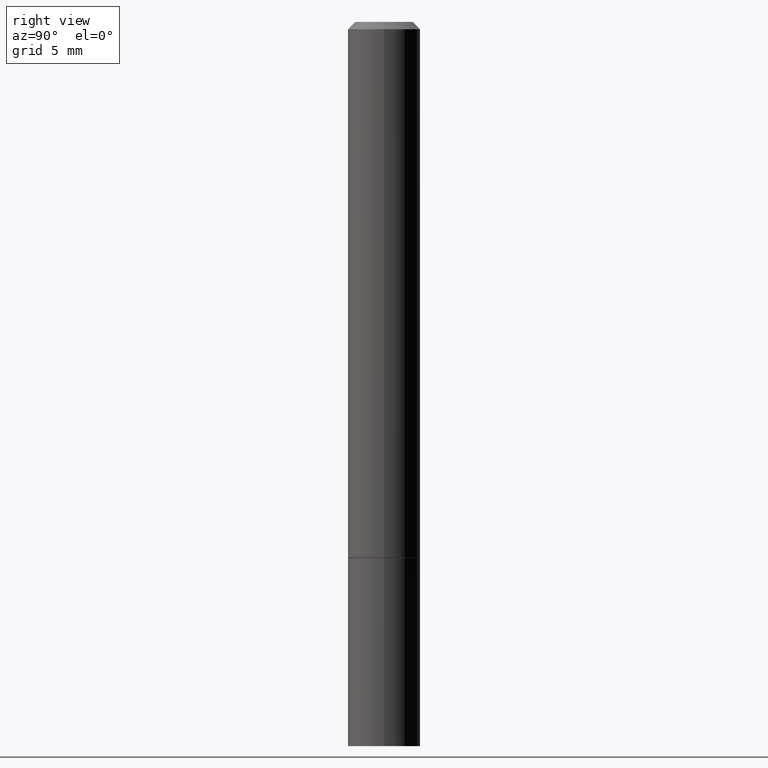
[diagram: clean part render]
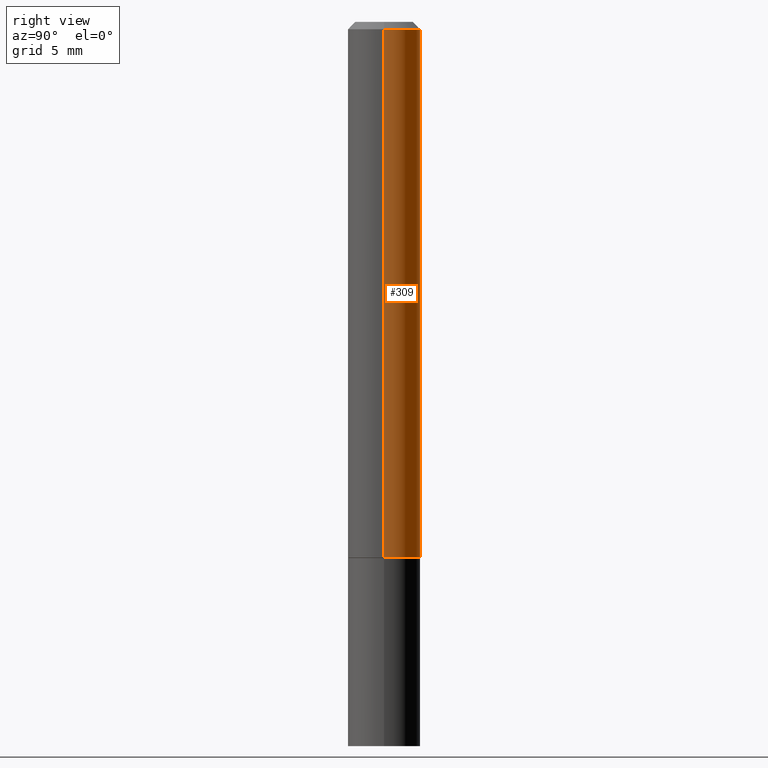
[diagram: same view with one face highlighted and labeled with its STEP entity id]
A machine part, right view. The second image highlights one B-rep face of the part: STEP entity #309.
In plain terms, the highlighted cylindrical surface (edge-blend (fillet) strip) has radius 2.5006 mm, axis along (-0, 0, 1).
Its self-contained STEP definition (entity closure, byte-faithful):
#4 = CIRCLE ( 'NONE', #200, 0.09844999999999980156 ) ;
#7 = AXIS2_PLACEMENT_3D ( 'NONE', #107, #249, #110 ) ;
#24 = DIRECTION ( 'NONE',  ( 1.000000000000000000, -6.982962677686265133E-15, 0.000000000000000000 ) ) ;
#35 = CARTESIAN_POINT ( 'NONE',  ( 3.559868941163703312E-29, -5.082549384953967438E-15, -1.455699999999999994 ) ) ;
#41 = EDGE_LOOP ( 'NONE', ( #76, #219, #121, #86 ) ) ;
#45 = FACE_OUTER_BOUND ( 'NONE', #41, .T. ) ;
#46 = DIRECTION ( 'NONE',  ( -2.445468806185136597E-29, 3.491481338843145583E-15, 1.000000000000000000 ) ) ;
#56 = CARTESIAN_POINT ( 'NONE',  ( 4.890937612370279289E-31, -6.982962677686299005E-17, -0.02000000000000002470 ) ) ;
#76 = ORIENTED_EDGE ( 'NONE', *, *, #78, .T. ) ;
#78 = EDGE_CURVE ( 'NONE', #106, #177, #354, .T. ) ;
#86 = ORIENTED_EDGE ( 'NONE', *, *, #346, .F. ) ;
#93 = EDGE_CURVE ( 'NONE', #119, #184, #4, .T. ) ;
#100 = DIRECTION ( 'NONE',  ( 1.000000000000000000, -6.982962677686266711E-15, 0.000000000000000000 ) ) ;
#105 = VECTOR ( 'NONE', #146, 39.37007874015748143 ) ;
#106 = VERTEX_POINT ( 'NONE', #186 ) ;
#107 = CARTESIAN_POINT ( 'NONE',  ( 0.000000000000000000, 0.000000000000000000, 0.000000000000000000 ) ) ;
#110 = DIRECTION ( 'NONE',  ( 1.000000000000000000, -6.982962677686266711E-15, 4.876176775795935793E-29 ) ) ;
#119 = VERTEX_POINT ( 'NONE', #313 ) ;
#121 = ORIENTED_EDGE ( 'NONE', *, *, #93, .F. ) ;
#142 = LINE ( 'NONE', #305, #105 ) ;
#146 = DIRECTION ( 'NONE',  ( -2.445468806185136877E-29, 3.491481338843145188E-15, 1.000000000000000000 ) ) ;
#148 = AXIS2_PLACEMENT_3D ( 'NONE', #35, #46, #24 ) ;
#154 = CARTESIAN_POINT ( 'NONE',  ( -0.09844999999999980156, 6.176430488413486702E-16, -0.02000000000000002470 ) ) ;
#158 = DIRECTION ( 'NONE',  ( -2.445468806185136877E-29, 3.491481338843145188E-15, 1.000000000000000000 ) ) ;
#177 = VERTEX_POINT ( 'NONE', #206 ) ;
#179 = EDGE_CURVE ( 'NONE', #177, #184, #353, .T. ) ;
#184 = VERTEX_POINT ( 'NONE', #154 ) ;
#185 = CYLINDRICAL_SURFACE ( 'NONE', #7, 0.09844999999999991258 ) ;
#186 = CARTESIAN_POINT ( 'NONE',  ( 0.09845000000000000973, -5.770022060572179999E-15, -1.455699999999999994 ) ) ;
#200 = AXIS2_PLACEMENT_3D ( 'NONE', #56, #225, #100 ) ;
#206 = CARTESIAN_POINT ( 'NONE',  ( -0.09845000000000000973, -1.876660182509593708E-15, -1.455699999999999994 ) ) ;
#219 = ORIENTED_EDGE ( 'NONE', *, *, #179, .T. ) ;
#225 = DIRECTION ( 'NONE',  ( -2.445468806185136597E-29, 3.491481338843145583E-15, 1.000000000000000000 ) ) ;
#245 = CARTESIAN_POINT ( 'NONE',  ( -0.09844999999999991258, 6.995293233558180118E-16, -4.842691596355949838E-30 ) ) ;
#249 = DIRECTION ( 'NONE',  ( -2.445468806185136597E-29, 3.491481338843145583E-15, 1.000000000000000000 ) ) ;
#290 = VECTOR ( 'NONE', #158, 39.37007874015748143 ) ;
#305 = CARTESIAN_POINT ( 'NONE',  ( 0.09844999999999991258, -6.874726756182123629E-16, 4.800596035771094310E-30 ) ) ;
#309 = ADVANCED_FACE ( 'NONE', ( #45 ), #185, .T. ) ;
#313 = CARTESIAN_POINT ( 'NONE',  ( 0.09844999999999980156, -7.452456546574689274E-16, -0.02000000000000002470 ) ) ;
#346 = EDGE_CURVE ( 'NONE', #106, #119, #142, .T. ) ;
#353 = LINE ( 'NONE', #245, #290 ) ;
#354 = CIRCLE ( 'NONE', #148, 0.09845000000000000973 ) ;